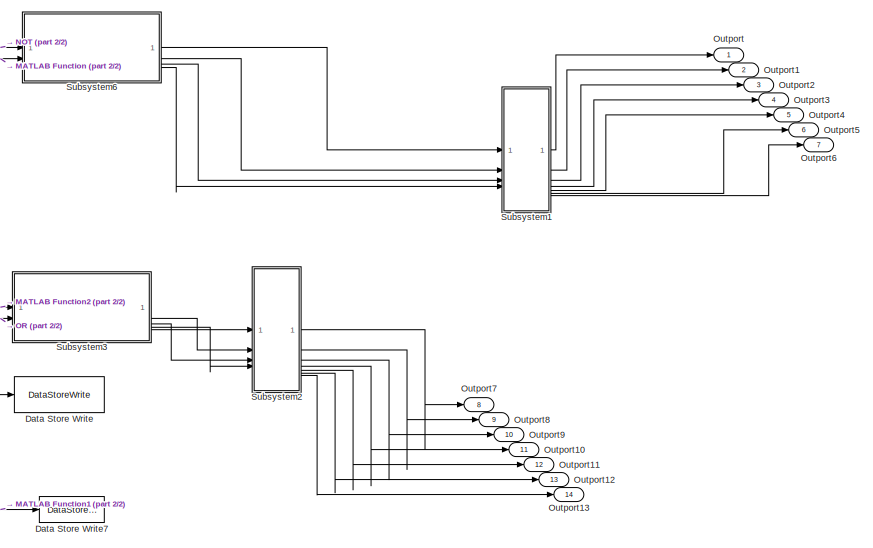
[diagram: root canvas - part 1/2, top right region]
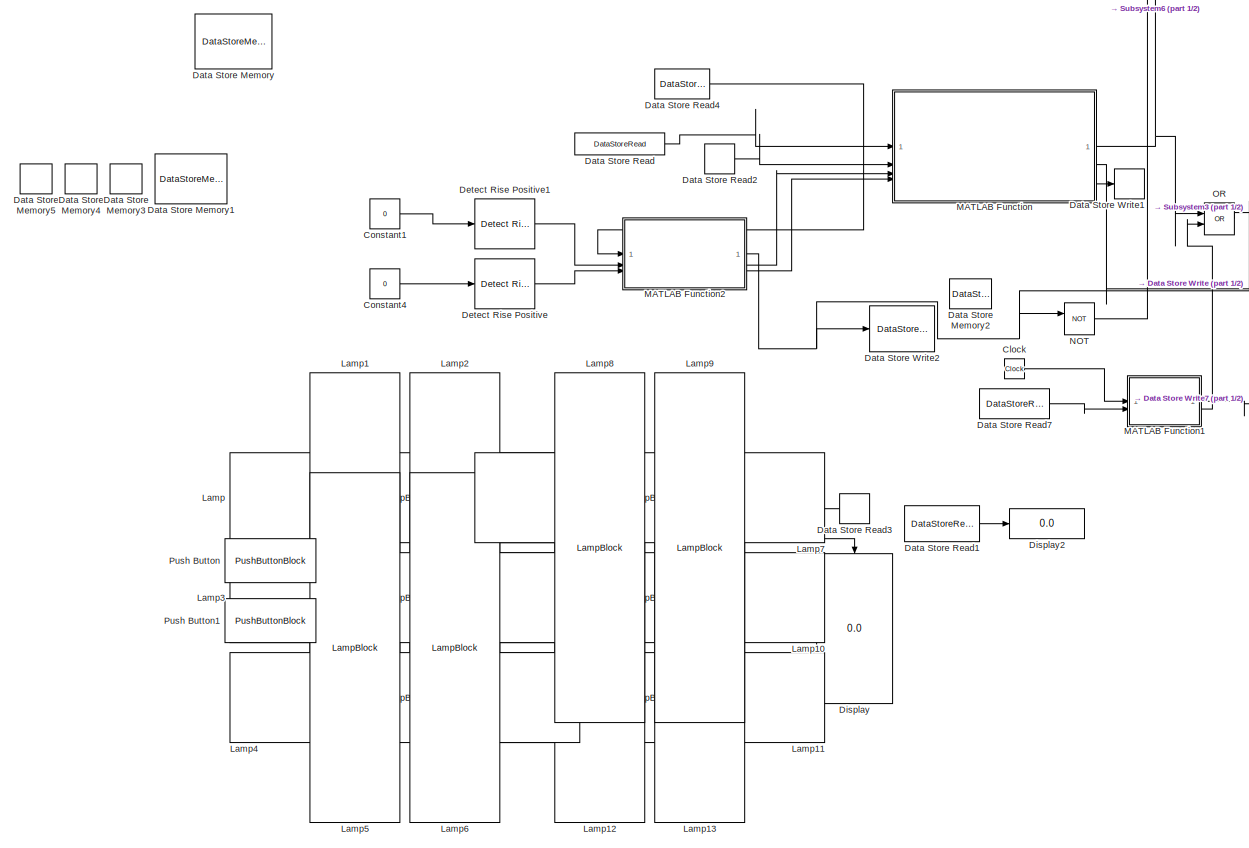
[diagram: root canvas - part 2/2, left side, full height]
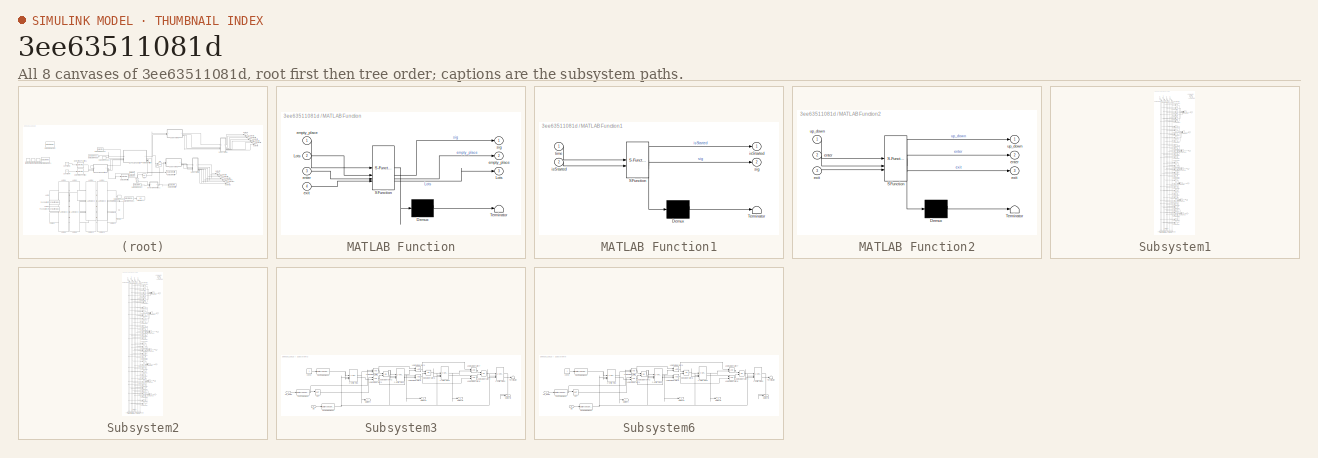
[diagram: thumbnail index - all 8 canvases of the model, root first then tree order]
MODEL slx_3ee63511081d
KIND model
CONFIG AbsTol = auto
CONFIG EnableMultiTasking = off
CONFIG FixedStep = auto
CONFIG MaxStep = auto
CONFIG MinStep = auto
CONFIG RelTol = 1e-3
CONFIG SampleTimeConstraint = Unconstrained
CONFIG SolverName = VariableStepAuto
CONFIG StartTime = 0.0
CONFIG StopTime = inf
BLOCK [Clock] Clock
BLOCK [Constant] Constant1
  Value = 0
BLOCK [Constant] Constant4
  Value = 0
BLOCK [DataStoreMemory] Data Store Memory
  DataStoreName = Empty_place
  InitialValue = 8
  OutDataTypeStr = double
  ShowAdditionalParam = off
  WriteAfterWriteMsg = warning
BLOCK [DataStoreMemory] Data Store Memory1
  DataStoreName = LOTS
  InitialValue = [0,0,0,0,0,0,0,0]
  ShowAdditionalParam = off
  WriteAfterWriteMsg = warning
BLOCK [DataStoreMemory] Data Store Memory2
  DataStoreName = up_down
  ShowAdditionalParam = off
  WriteAfterWriteMsg = warning
BLOCK [DataStoreMemory] Data Store Memory3
  DataStoreName = Enter
  ShowAdditionalParam = off
  WriteAfterWriteMsg = warning
BLOCK [DataStoreMemory] Data Store Memory4
  DataStoreName = Exit
  ShowAdditionalParam = off
  WriteAfterWriteMsg = warning
BLOCK [DataStoreMemory] Data Store Memory5
  DataStoreName = isStarted
  ShowAdditionalParam = off
  WriteAfterWriteMsg = warning
BLOCK [DataStoreRead] Data Store Read
  DataStoreName = Empty_place
  IndexOptions = Index vector (dialog)
  Indices = 1
  OutputSizes = 1
BLOCK [DataStoreRead] Data Store Read1
  DataStoreName = Empty_place
  IndexOptions = Index vector (dialog)
  Indices = 1
  OutputSizes = 1
BLOCK [DataStoreRead] Data Store Read2
  DataStoreName = LOTS
  IndexOptions = Index vector (dialog)
  Indices = 1
  OutputSizes = 1
BLOCK [DataStoreRead] Data Store Read3
  DataStoreName = LOTS
  IndexOptions = Index vector (dialog)
  Indices = 1
  NameLocation = top
  OutputSizes = 1
BLOCK [DataStoreRead] Data Store Read4
  DataStoreName = up_down
  IndexOptions = Index vector (dialog)
  Indices = 1
  OutputSizes = 1
BLOCK [DataStoreRead] Data Store Read7
  DataStoreName = isStarted
  IndexOptions = Index vector (dialog)
  Indices = 1
  OutputSizes = 1
BLOCK [DataStoreWrite] Data Store Write
  DataStoreName = Empty_place
  IndexOptions = Index vector (dialog)
  Indices = 1
  OutputSizes = 1
BLOCK [DataStoreWrite] Data Store Write1
  DataStoreName = LOTS
  IndexOptions = Index vector (dialog)
  Indices = 1
  OutputSizes = 1
BLOCK [DataStoreWrite] Data Store Write2
  DataStoreName = up_down
  IndexOptions = Index vector (dialog)
  Indices = 1
  OutputSizes = 1
BLOCK [DataStoreWrite] Data Store Write7
  DataStoreName = isStarted
  IndexOptions = Index vector (dialog)
  Indices = 1
  OutputSizes = 1
BLOCK [Reference] Detect Rise Positive  REF=simulink/Logic and Bit
Operations/Detect Rise
Positive
  SourceBlock = simulink/Logic and Bit\nOperations/Detect Rise\nPositive
  SourceType = Detect Rise Positive
BLOCK [Reference] Detect Rise Positive1  REF=simulink/Logic and Bit
Operations/Detect Rise
Positive
  SourceBlock = simulink/Logic and Bit\nOperations/Detect Rise\nPositive
  SourceType = Detect Rise Positive
BLOCK [Display] Display
  Decimation = 1
  NameLocation = left
BLOCK [Display] Display2
  Decimation = 1
BLOCK [LampBlock] Lamp
  Icon = Rectangle
  LabelPosition = Hide
BLOCK [LampBlock] Lamp1
  Icon = Rectangle
  LabelPosition = Hide
  NameLocation = left
BLOCK [LampBlock] Lamp10
  Icon = Rectangle
  LabelPosition = Hide
BLOCK [LampBlock] Lamp11
  Icon = Rectangle
  LabelPosition = Hide
BLOCK [LampBlock] Lamp12
  Icon = Rectangle
  LabelPosition = Hide
  NameLocation = left
BLOCK [LampBlock] Lamp13
  Icon = Rectangle
  LabelPosition = Hide
  NameLocation = left
BLOCK [LampBlock] Lamp2
  Icon = Rectangle
  LabelPosition = Hide
  NameLocation = left
BLOCK [LampBlock] Lamp3
  Icon = Rectangle
  LabelPosition = Hide
BLOCK [LampBlock] Lamp4
  Icon = Rectangle
  LabelPosition = Hide
BLOCK [LampBlock] Lamp5
  Icon = Rectangle
  LabelPosition = Hide
  NameLocation = left
BLOCK [LampBlock] Lamp6
  Icon = Rectangle
  LabelPosition = Hide
  NameLocation = left
BLOCK [LampBlock] Lamp7
  Icon = Rectangle
  LabelPosition = Hide
BLOCK [LampBlock] Lamp8
  Icon = Rectangle
  LabelPosition = Hide
  NameLocation = left
BLOCK [LampBlock] Lamp9
  Icon = Rectangle
  LabelPosition = Hide
  NameLocation = left
BLOCK [SubSystem] MATLAB Function
  ErrorFcn = Stateflow.Translate.translate
  PermitHierarchicalResolution = ExplicitOnly
  SFBlockType = MATLAB Function
  TreatAsAtomicUnit = on
BLOCK [Demux] MATLAB Function/ Demux 
  Outputs = 1
BLOCK [S-Function] MATLAB Function/ SFunction 
  EnableBusSupport = on
  FunctionName = sf_sfun
  PortCounts = [4 4]
  SFcnIsStateOwnerBlock = off
  SFunctionDeploymentMode = off
  Tag = Stateflow S-Function 2
BLOCK [Terminator] MATLAB Function/ Terminator 
BLOCK [Outport] MATLAB Function/Lots
  Port = 3
BLOCK [Inport] MATLAB Function/Lots 
  Port = 2
BLOCK [Outport] MATLAB Function/empty_place
  Port = 2
BLOCK [Inport] MATLAB Function/empty_place 
BLOCK [Inport] MATLAB Function/enter
  Port = 3
BLOCK [Inport] MATLAB Function/exit
  Port = 4
BLOCK [Outport] MATLAB Function/sig
BLOCK [SubSystem] MATLAB Function1
  ErrorFcn = Stateflow.Translate.translate
  PermitHierarchicalResolution = ExplicitOnly
  SFBlockType = MATLAB Function
  TreatAsAtomicUnit = on
BLOCK [Demux] MATLAB Function1/ Demux 
  Outputs = 1
BLOCK [S-Function] MATLAB Function1/ SFunction 
  EnableBusSupport = on
  FunctionName = sf_sfun
  PortCounts = [2 3]
  SFcnIsStateOwnerBlock = off
  SFunctionDeploymentMode = off
  Tag = Stateflow S-Function 1
BLOCK [Terminator] MATLAB Function1/ Terminator 
BLOCK [Outport] MATLAB Function1/isStarted
BLOCK [Inport] MATLAB Function1/isStarted 
  Port = 2
BLOCK [Outport] MATLAB Function1/sig
  Port = 2
BLOCK [Inport] MATLAB Function1/time
BLOCK [SubSystem] MATLAB Function2
  ErrorFcn = Stateflow.Translate.translate
  PermitHierarchicalResolution = ExplicitOnly
  SFBlockType = MATLAB Function
  TreatAsAtomicUnit = on
BLOCK [Demux] MATLAB Function2/ Demux 
  Outputs = 1
BLOCK [S-Function] MATLAB Function2/ SFunction 
  EnableBusSupport = on
  FunctionName = sf_sfun
  PortCounts = [3 4]
  SFcnIsStateOwnerBlock = off
  SFunctionDeploymentMode = off
  Tag = Stateflow S-Function 3
BLOCK [Terminator] MATLAB Function2/ Terminator 
BLOCK [Outport] MATLAB Function2/enter
  Port = 2
BLOCK [Inport] MATLAB Function2/enter 
  Port = 2
BLOCK [Outport] MATLAB Function2/exit
  Port = 3
BLOCK [Inport] MATLAB Function2/exit 
  Port = 3
BLOCK [Outport] MATLAB Function2/up_down
BLOCK [Inport] MATLAB Function2/up_down 
BLOCK [Logic] NOT
  AllPortsSameDT = off
  IconShape = distinctive
  Operator = NOT
  OutDataTypeStr = boolean
BLOCK [Logic] OR
  AllPortsSameDT = off
  IconShape = distinctive
  Operator = OR
  OutDataTypeStr = boolean
BLOCK [Outport] Outport
BLOCK [Outport] Outport1
  Port = 2
BLOCK [Outport] Outport10
  Port = 11
BLOCK [Outport] Outport11
  Port = 12
BLOCK [Outport] Outport12
  Port = 13
BLOCK [Outport] Outport13
  Port = 14
BLOCK [Outport] Outport2
  Port = 3
BLOCK [Outport] Outport3
  Port = 4
BLOCK [Outport] Outport4
  Port = 5
BLOCK [Outport] Outport5
  Port = 6
BLOCK [Outport] Outport6
  Port = 7
BLOCK [Outport] Outport7
  Port = 8
BLOCK [Outport] Outport8
  Port = 9
BLOCK [Outport] Outport9
  Port = 10
BLOCK [PushButtonBlock] Push Button
  ButtonText = Exit
  OffValue = 0.000000
BLOCK [PushButtonBlock] Push Button1
  ButtonText = Enter
  OffValue = 0.000000
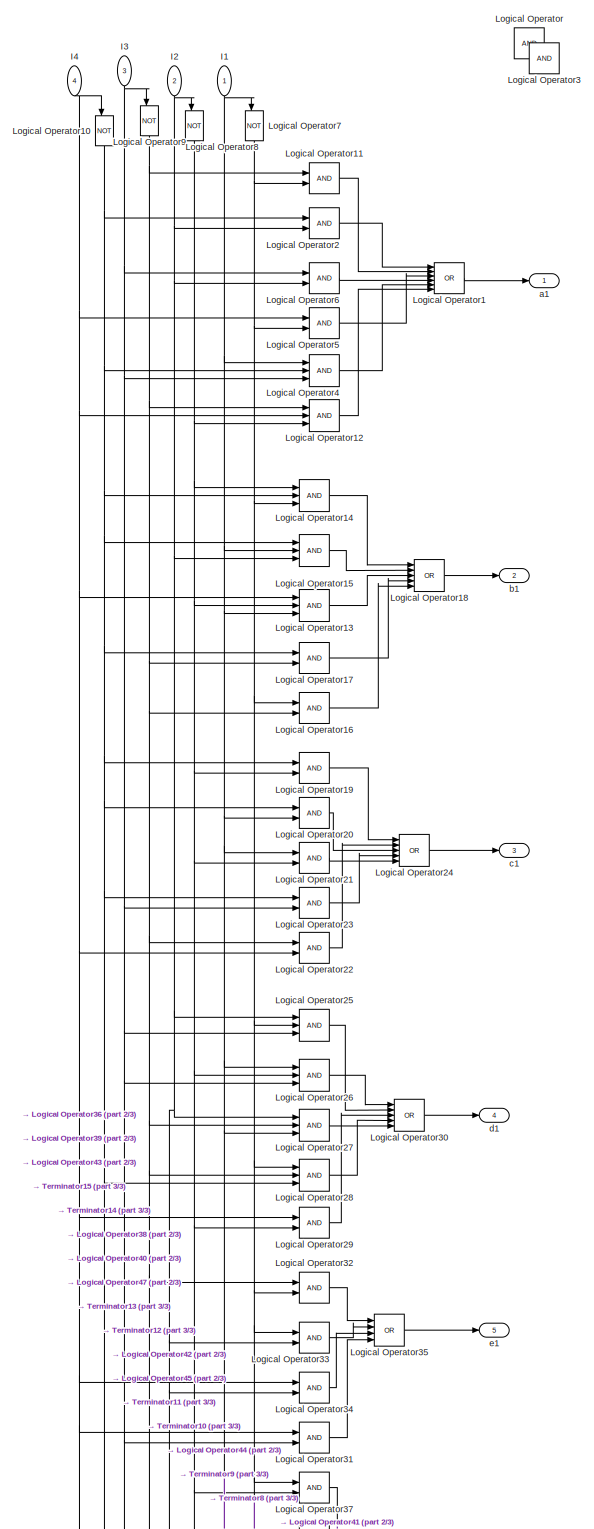
[diagram: Subsystem1 - part 1/3, most of the canvas]
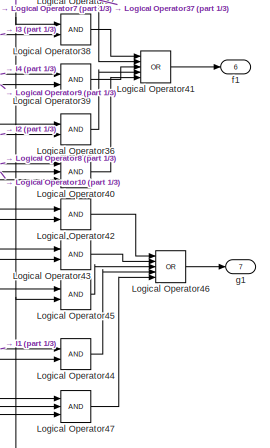
[diagram: Subsystem1 - part 2/3, bottom center region]
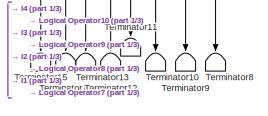
[diagram: Subsystem1 - part 3/3, bottom left region]
BLOCK [SubSystem] Subsystem1
  NameLocation = top
  TreatAsAtomicUnit = on
BLOCK [Inport] Subsystem1/I1
  NameLocation = left
BLOCK [Inport] Subsystem1/I2
  NameLocation = left
  Port = 2
BLOCK [Inport] Subsystem1/I3
  NameLocation = left
  Port = 3
BLOCK [Inport] Subsystem1/I4
  NameLocation = left
  Port = 4
BLOCK [Logic] Subsystem1/Logical Operator
  AllPortsSameDT = off
  OutDataTypeStr = boolean
BLOCK [Logic] Subsystem1/Logical Operator1
  AllPortsSameDT = off
  Inputs = 6
  Operator = OR
  OutDataTypeStr = boolean
BLOCK [Logic] Subsystem1/Logical Operator10
  AllPortsSameDT = off
  NameLocation = left
  Operator = NOT
  OutDataTypeStr = boolean
BLOCK [Logic] Subsystem1/Logical Operator11
  AllPortsSameDT = off
  OutDataTypeStr = boolean
BLOCK [Logic] Subsystem1/Logical Operator12
  AllPortsSameDT = off
  Inputs = 3
  OutDataTypeStr = boolean
BLOCK [Logic] Subsystem1/Logical Operator13
  AllPortsSameDT = off
  Inputs = 3
  OutDataTypeStr = boolean
BLOCK [Logic] Subsystem1/Logical Operator14
  AllPortsSameDT = off
  Inputs = 3
  OutDataTypeStr = boolean
BLOCK [Logic] Subsystem1/Logical Operator15
  AllPortsSameDT = off
  Inputs = 3
  OutDataTypeStr = boolean
BLOCK [Logic] Subsystem1/Logical Operator16
  AllPortsSameDT = off
  OutDataTypeStr = boolean
BLOCK [Logic] Subsystem1/Logical Operator17
  AllPortsSameDT = off
  OutDataTypeStr = boolean
BLOCK [Logic] Subsystem1/Logical Operator18
  AllPortsSameDT = off
  Inputs = 5
  Operator = OR
  OutDataTypeStr = boolean
BLOCK [Logic] Subsystem1/Logical Operator19
  AllPortsSameDT = off
  OutDataTypeStr = boolean
BLOCK [Logic] Subsystem1/Logical Operator2
  AllPortsSameDT = off
  OutDataTypeStr = boolean
BLOCK [Logic] Subsystem1/Logical Operator20
  AllPortsSameDT = off
  OutDataTypeStr = boolean
BLOCK [Logic] Subsystem1/Logical Operator21
  AllPortsSameDT = off
  OutDataTypeStr = boolean
BLOCK [Logic] Subsystem1/Logical Operator22
  AllPortsSameDT = off
  OutDataTypeStr = boolean
BLOCK [Logic] Subsystem1/Logical Operator23
  AllPortsSameDT = off
  OutDataTypeStr = boolean
BLOCK [Logic] Subsystem1/Logical Operator24
  AllPortsSameDT = off
  Inputs = 5
  Operator = OR
  OutDataTypeStr = boolean
BLOCK [Logic] Subsystem1/Logical Operator25
  AllPortsSameDT = off
  Inputs = 3
  OutDataTypeStr = boolean
BLOCK [Logic] Subsystem1/Logical Operator26
  AllPortsSameDT = off
  Inputs = 3
  OutDataTypeStr = boolean
BLOCK [Logic] Subsystem1/Logical Operator27
  AllPortsSameDT = off
  Inputs = 3
  OutDataTypeStr = boolean
BLOCK [Logic] Subsystem1/Logical Operator28
  AllPortsSameDT = off
  Inputs = 3
  OutDataTypeStr = boolean
BLOCK [Logic] Subsystem1/Logical Operator29
  AllPortsSameDT = off
  OutDataTypeStr = boolean
BLOCK [Logic] Subsystem1/Logical Operator3
  AllPortsSameDT = off
  OutDataTypeStr = boolean
BLOCK [Logic] Subsystem1/Logical Operator30
  AllPortsSameDT = off
  Inputs = 5
  Operator = OR
  OutDataTypeStr = boolean
BLOCK [Logic] Subsystem1/Logical Operator31
  AllPortsSameDT = off
  OutDataTypeStr = boolean
BLOCK [Logic] Subsystem1/Logical Operator32
  AllPortsSameDT = off
  OutDataTypeStr = boolean
BLOCK [Logic] Subsystem1/Logical Operator33
  AllPortsSameDT = off
  OutDataTypeStr = boolean
BLOCK [Logic] Subsystem1/Logical Operator34
  AllPortsSameDT = off
  OutDataTypeStr = boolean
BLOCK [Logic] Subsystem1/Logical Operator35
  AllPortsSameDT = off
  Inputs = 4
  Operator = OR
  OutDataTypeStr = boolean
BLOCK [Logic] Subsystem1/Logical Operator36
  AllPortsSameDT = off
  OutDataTypeStr = boolean
BLOCK [Logic] Subsystem1/Logical Operator37
  AllPortsSameDT = off
  OutDataTypeStr = boolean
BLOCK [Logic] Subsystem1/Logical Operator38
  AllPortsSameDT = off
  OutDataTypeStr = boolean
BLOCK [Logic] Subsystem1/Logical Operator39
  AllPortsSameDT = off
  OutDataTypeStr = boolean
BLOCK [Logic] Subsystem1/Logical Operator4
  AllPortsSameDT = off
  Inputs = 3
  OutDataTypeStr = boolean
BLOCK [Logic] Subsystem1/Logical Operator40
  AllPortsSameDT = off
  Inputs = 3
  OutDataTypeStr = boolean
BLOCK [Logic] Subsystem1/Logical Operator41
  AllPortsSameDT = off
  Inputs = 5
  Operator = OR
  OutDataTypeStr = boolean
BLOCK [Logic] Subsystem1/Logical Operator42
  AllPortsSameDT = off
  OutDataTypeStr = boolean
BLOCK [Logic] Subsystem1/Logical Operator43
  AllPortsSameDT = off
  OutDataTypeStr = boolean
BLOCK [Logic] Subsystem1/Logical Operator44
  AllPortsSameDT = off
  OutDataTypeStr = boolean
BLOCK [Logic] Subsystem1/Logical Operator45
  AllPortsSameDT = off
  OutDataTypeStr = boolean
BLOCK [Logic] Subsystem1/Logical Operator46
  AllPortsSameDT = off
  Inputs = 5
  Operator = OR
  OutDataTypeStr = boolean
BLOCK [Logic] Subsystem1/Logical Operator47
  AllPortsSameDT = off
  Inputs = 3
  OutDataTypeStr = boolean
BLOCK [Logic] Subsystem1/Logical Operator5
  AllPortsSameDT = off
  OutDataTypeStr = boolean
BLOCK [Logic] Subsystem1/Logical Operator6
  AllPortsSameDT = off
  OutDataTypeStr = boolean
BLOCK [Logic] Subsystem1/Logical Operator7
  AllPortsSameDT = off
  NameLocation = left
  Operator = NOT
  OutDataTypeStr = boolean
BLOCK [Logic] Subsystem1/Logical Operator8
  AllPortsSameDT = off
  NameLocation = left
  Operator = NOT
  OutDataTypeStr = boolean
BLOCK [Logic] Subsystem1/Logical Operator9
  AllPortsSameDT = off
  NameLocation = left
  Operator = NOT
  OutDataTypeStr = boolean
BLOCK [Terminator] Subsystem1/Terminator10
  NameLocation = left
BLOCK [Terminator] Subsystem1/Terminator11
  NameLocation = left
BLOCK [Terminator] Subsystem1/Terminator12
  NameLocation = left
BLOCK [Terminator] Subsystem1/Terminator13
  NameLocation = left
BLOCK [Terminator] Subsystem1/Terminator14
  NameLocation = left
BLOCK [Terminator] Subsystem1/Terminator15
  NameLocation = left
BLOCK [Terminator] Subsystem1/Terminator8
  NameLocation = left
BLOCK [Terminator] Subsystem1/Terminator9
  NameLocation = left
BLOCK [Outport] Subsystem1/a1
BLOCK [Outport] Subsystem1/b1
  Port = 2
BLOCK [Outport] Subsystem1/c1
  Port = 3
BLOCK [Outport] Subsystem1/d1
  Port = 4
BLOCK [Outport] Subsystem1/e1
  Port = 5
BLOCK [Outport] Subsystem1/f1
  Port = 6
BLOCK [Outport] Subsystem1/g1
  Port = 7
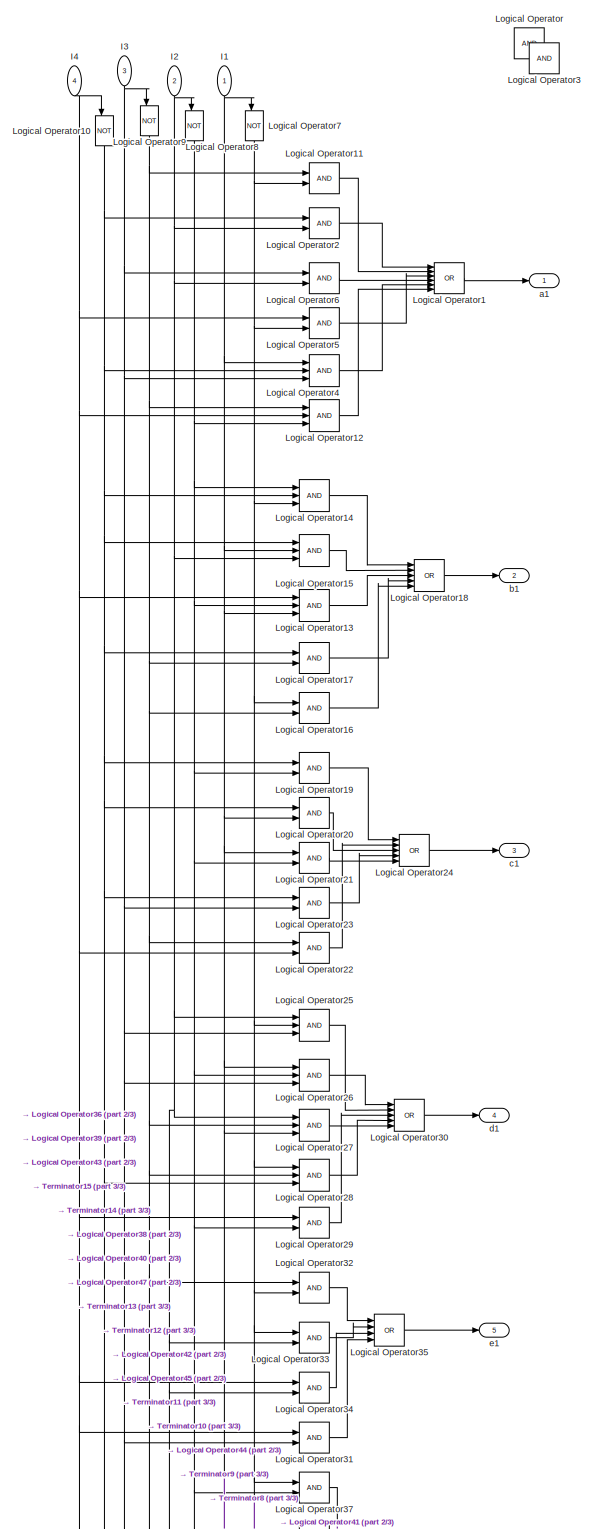
[diagram: Subsystem2 - part 1/3, most of the canvas]
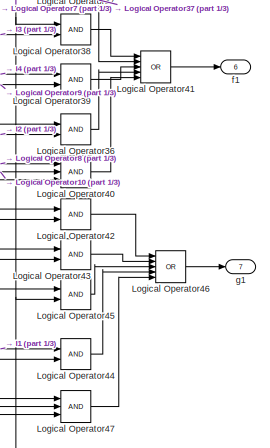
[diagram: Subsystem2 - part 2/3, bottom center region]
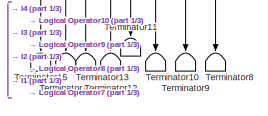
[diagram: Subsystem2 - part 3/3, bottom left region]
BLOCK [SubSystem] Subsystem2
  NameLocation = top
  TreatAsAtomicUnit = on
BLOCK [Inport] Subsystem2/I1
  NameLocation = left
BLOCK [Inport] Subsystem2/I2
  NameLocation = left
  Port = 2
BLOCK [Inport] Subsystem2/I3
  NameLocation = left
  Port = 3
BLOCK [Inport] Subsystem2/I4
  NameLocation = left
  Port = 4
BLOCK [Logic] Subsystem2/Logical Operator
  AllPortsSameDT = off
  OutDataTypeStr = boolean
BLOCK [Logic] Subsystem2/Logical Operator1
  AllPortsSameDT = off
  Inputs = 6
  Operator = OR
  OutDataTypeStr = boolean
BLOCK [Logic] Subsystem2/Logical Operator10
  AllPortsSameDT = off
  NameLocation = left
  Operator = NOT
  OutDataTypeStr = boolean
BLOCK [Logic] Subsystem2/Logical Operator11
  AllPortsSameDT = off
  OutDataTypeStr = boolean
BLOCK [Logic] Subsystem2/Logical Operator12
  AllPortsSameDT = off
  Inputs = 3
  OutDataTypeStr = boolean
BLOCK [Logic] Subsystem2/Logical Operator13
  AllPortsSameDT = off
  Inputs = 3
  OutDataTypeStr = boolean
BLOCK [Logic] Subsystem2/Logical Operator14
  AllPortsSameDT = off
  Inputs = 3
  OutDataTypeStr = boolean
BLOCK [Logic] Subsystem2/Logical Operator15
  AllPortsSameDT = off
  Inputs = 3
  OutDataTypeStr = boolean
BLOCK [Logic] Subsystem2/Logical Operator16
  AllPortsSameDT = off
  OutDataTypeStr = boolean
BLOCK [Logic] Subsystem2/Logical Operator17
  AllPortsSameDT = off
  OutDataTypeStr = boolean
BLOCK [Logic] Subsystem2/Logical Operator18
  AllPortsSameDT = off
  Inputs = 5
  Operator = OR
  OutDataTypeStr = boolean
BLOCK [Logic] Subsystem2/Logical Operator19
  AllPortsSameDT = off
  OutDataTypeStr = boolean
BLOCK [Logic] Subsystem2/Logical Operator2
  AllPortsSameDT = off
  OutDataTypeStr = boolean
BLOCK [Logic] Subsystem2/Logical Operator20
  AllPortsSameDT = off
  OutDataTypeStr = boolean
BLOCK [Logic] Subsystem2/Logical Operator21
  AllPortsSameDT = off
  OutDataTypeStr = boolean
BLOCK [Logic] Subsystem2/Logical Operator22
  AllPortsSameDT = off
  OutDataTypeStr = boolean
BLOCK [Logic] Subsystem2/Logical Operator23
  AllPortsSameDT = off
  OutDataTypeStr = boolean
BLOCK [Logic] Subsystem2/Logical Operator24
  AllPortsSameDT = off
  Inputs = 5
  Operator = OR
  OutDataTypeStr = boolean
BLOCK [Logic] Subsystem2/Logical Operator25
  AllPortsSameDT = off
  Inputs = 3
  OutDataTypeStr = boolean
BLOCK [Logic] Subsystem2/Logical Operator26
  AllPortsSameDT = off
  Inputs = 3
  OutDataTypeStr = boolean
BLOCK [Logic] Subsystem2/Logical Operator27
  AllPortsSameDT = off
  Inputs = 3
  OutDataTypeStr = boolean
BLOCK [Logic] Subsystem2/Logical Operator28
  AllPortsSameDT = off
  Inputs = 3
  OutDataTypeStr = boolean
BLOCK [Logic] Subsystem2/Logical Operator29
  AllPortsSameDT = off
  OutDataTypeStr = boolean
BLOCK [Logic] Subsystem2/Logical Operator3
  AllPortsSameDT = off
  OutDataTypeStr = boolean
BLOCK [Logic] Subsystem2/Logical Operator30
  AllPortsSameDT = off
  Inputs = 5
  Operator = OR
  OutDataTypeStr = boolean
BLOCK [Logic] Subsystem2/Logical Operator31
  AllPortsSameDT = off
  OutDataTypeStr = boolean
BLOCK [Logic] Subsystem2/Logical Operator32
  AllPortsSameDT = off
  OutDataTypeStr = boolean
BLOCK [Logic] Subsystem2/Logical Operator33
  AllPortsSameDT = off
  OutDataTypeStr = boolean
BLOCK [Logic] Subsystem2/Logical Operator34
  AllPortsSameDT = off
  OutDataTypeStr = boolean
BLOCK [Logic] Subsystem2/Logical Operator35
  AllPortsSameDT = off
  Inputs = 4
  Operator = OR
  OutDataTypeStr = boolean
BLOCK [Logic] Subsystem2/Logical Operator36
  AllPortsSameDT = off
  OutDataTypeStr = boolean
BLOCK [Logic] Subsystem2/Logical Operator37
  AllPortsSameDT = off
  OutDataTypeStr = boolean
BLOCK [Logic] Subsystem2/Logical Operator38
  AllPortsSameDT = off
  OutDataTypeStr = boolean
BLOCK [Logic] Subsystem2/Logical Operator39
  AllPortsSameDT = off
  OutDataTypeStr = boolean
BLOCK [Logic] Subsystem2/Logical Operator4
  AllPortsSameDT = off
  Inputs = 3
  OutDataTypeStr = boolean
BLOCK [Logic] Subsystem2/Logical Operator40
  AllPortsSameDT = off
  Inputs = 3
  OutDataTypeStr = boolean
BLOCK [Logic] Subsystem2/Logical Operator41
  AllPortsSameDT = off
  Inputs = 5
  Operator = OR
  OutDataTypeStr = boolean
BLOCK [Logic] Subsystem2/Logical Operator42
  AllPortsSameDT = off
  OutDataTypeStr = boolean
BLOCK [Logic] Subsystem2/Logical Operator43
  AllPortsSameDT = off
  OutDataTypeStr = boolean
BLOCK [Logic] Subsystem2/Logical Operator44
  AllPortsSameDT = off
  OutDataTypeStr = boolean
BLOCK [Logic] Subsystem2/Logical Operator45
  AllPortsSameDT = off
  OutDataTypeStr = boolean
BLOCK [Logic] Subsystem2/Logical Operator46
  AllPortsSameDT = off
  Inputs = 5
  Operator = OR
  OutDataTypeStr = boolean
BLOCK [Logic] Subsystem2/Logical Operator47
  AllPortsSameDT = off
  Inputs = 3
  OutDataTypeStr = boolean
BLOCK [Logic] Subsystem2/Logical Operator5
  AllPortsSameDT = off
  OutDataTypeStr = boolean
BLOCK [Logic] Subsystem2/Logical Operator6
  AllPortsSameDT = off
  OutDataTypeStr = boolean
BLOCK [Logic] Subsystem2/Logical Operator7
  AllPortsSameDT = off
  NameLocation = left
  Operator = NOT
  OutDataTypeStr = boolean
BLOCK [Logic] Subsystem2/Logical Operator8
  AllPortsSameDT = off
  NameLocation = left
  Operator = NOT
  OutDataTypeStr = boolean
BLOCK [Logic] Subsystem2/Logical Operator9
  AllPortsSameDT = off
  NameLocation = left
  Operator = NOT
  OutDataTypeStr = boolean
BLOCK [Terminator] Subsystem2/Terminator10
  NameLocation = left
BLOCK [Terminator] Subsystem2/Terminator11
  NameLocation = left
BLOCK [Terminator] Subsystem2/Terminator12
  NameLocation = left
BLOCK [Terminator] Subsystem2/Terminator13
  NameLocation = left
BLOCK [Terminator] Subsystem2/Terminator14
  NameLocation = left
BLOCK [Terminator] Subsystem2/Terminator15
  NameLocation = left
BLOCK [Terminator] Subsystem2/Terminator8
  NameLocation = left
BLOCK [Terminator] Subsystem2/Terminator9
  NameLocation = left
BLOCK [Outport] Subsystem2/a1
BLOCK [Outport] Subsystem2/b1
  Port = 2
BLOCK [Outport] Subsystem2/c1
  Port = 3
BLOCK [Outport] Subsystem2/d1
  Port = 4
BLOCK [Outport] Subsystem2/e1
  Port = 5
BLOCK [Outport] Subsystem2/f1
  Port = 6
BLOCK [Outport] Subsystem2/g1
  Port = 7
BLOCK [SubSystem] Subsystem3
BLOCK [DataTypeConversion] Subsystem3/Cast To Boolean
  OutDataTypeStr = boolean
  RndMeth = Floor
  SaturateOnIntegerOverflow = off
BLOCK [DataTypeConversion] Subsystem3/Cast To Boolean1
  OutDataTypeStr = boolean
  RndMeth = Floor
  SaturateOnIntegerOverflow = off
BLOCK [DataTypeConversion] Subsystem3/Cast To Boolean2
  OutDataTypeStr = boolean
  RndMeth = Floor
  SaturateOnIntegerOverflow = off
BLOCK [Reference] Subsystem3/J-K Flip-Flop  REF=simulink_extras/Flip Flops/J-K
Flip-Flop
  SourceBlock = simulink_extras/Flip Flops/J-K\nFlip-Flop
  SourceType = JKFlipFlop
BLOCK [Reference] Subsystem3/J-K Flip-Flop1  REF=simulink_extras/Flip Flops/J-K
Flip-Flop
  SourceBlock = simulink_extras/Flip Flops/J-K\nFlip-Flop
  SourceType = JKFlipFlop
BLOCK [Reference] Subsystem3/J-K Flip-Flop2  REF=simulink_extras/Flip Flops/J-K
Flip-Flop
  SourceBlock = simulink_extras/Flip Flops/J-K\nFlip-Flop
  SourceType = JKFlipFlop
BLOCK [Reference] Subsystem3/J-K Flip-Flop3  REF=simulink_extras/Flip Flops/J-K
Flip-Flop
  SourceBlock = simulink_extras/Flip Flops/J-K\nFlip-Flop
  SourceType = JKFlipFlop
BLOCK [Logic] Subsystem3/Logical Operator
  AllPortsSameDT = off
  OutDataTypeStr = boolean
BLOCK [Logic] Subsystem3/Logical Operator1
  AllPortsSameDT = off
  OutDataTypeStr = boolean
BLOCK [Logic] Subsystem3/Logical Operator2
  AllPortsSameDT = off
  Operator = OR
  OutDataTypeStr = boolean
BLOCK [Logic] Subsystem3/Logical Operator4
  AllPortsSameDT = off
  OutDataTypeStr = boolean
BLOCK [Logic] Subsystem3/Logical Operator5
  AllPortsSameDT = off
  OutDataTypeStr = boolean
BLOCK [Logic] Subsystem3/Logical Operator6
  AllPortsSameDT = off
  Operator = OR
  OutDataTypeStr = boolean
BLOCK [Logic] Subsystem3/Logical Operator7
  AllPortsSameDT = off
  OutDataTypeStr = boolean
BLOCK [Logic] Subsystem3/Logical Operator8
  AllPortsSameDT = off
  OutDataTypeStr = boolean
BLOCK [Logic] Subsystem3/Logical Operator9
  AllPortsSameDT = off
  Operator = OR
  OutDataTypeStr = boolean
BLOCK [Logic] Subsystem3/NOT
  AllPortsSameDT = off
  IconShape = distinctive
  Operator = NOT
  OutDataTypeStr = boolean
BLOCK [Outport] Subsystem3/Outport
BLOCK [Outport] Subsystem3/Outport1
  Port = 2
BLOCK [Outport] Subsystem3/Outport2
  Port = 3
BLOCK [Outport] Subsystem3/Outport3
  Port = 4
BLOCK [Terminator] Subsystem3/Terminator
BLOCK [Constant] Subsystem3/const
  SampleTime = -1
BLOCK [Inport] Subsystem3/sig
  Port = 2
BLOCK [Inport] Subsystem3/up_Down
BLOCK [SubSystem] Subsystem6
BLOCK [DataTypeConversion] Subsystem6/Cast To Boolean
  OutDataTypeStr = boolean
  RndMeth = Floor
  SaturateOnIntegerOverflow = off
BLOCK [DataTypeConversion] Subsystem6/Cast To Boolean1
  OutDataTypeStr = boolean
  RndMeth = Floor
  SaturateOnIntegerOverflow = off
BLOCK [DataTypeConversion] Subsystem6/Cast To Boolean2
  OutDataTypeStr = boolean
  RndMeth = Floor
  SaturateOnIntegerOverflow = off
BLOCK [Reference] Subsystem6/J-K Flip-Flop  REF=simulink_extras/Flip Flops/J-K
Flip-Flop
  SourceBlock = simulink_extras/Flip Flops/J-K\nFlip-Flop
  SourceType = JKFlipFlop
BLOCK [Reference] Subsystem6/J-K Flip-Flop1  REF=simulink_extras/Flip Flops/J-K
Flip-Flop
  SourceBlock = simulink_extras/Flip Flops/J-K\nFlip-Flop
  SourceType = JKFlipFlop
BLOCK [Reference] Subsystem6/J-K Flip-Flop2  REF=simulink_extras/Flip Flops/J-K
Flip-Flop
  SourceBlock = simulink_extras/Flip Flops/J-K\nFlip-Flop
  SourceType = JKFlipFlop
BLOCK [Reference] Subsystem6/J-K Flip-Flop3  REF=simulink_extras/Flip Flops/J-K
Flip-Flop
  SourceBlock = simulink_extras/Flip Flops/J-K\nFlip-Flop
  SourceType = JKFlipFlop
BLOCK [Logic] Subsystem6/Logical Operator
  AllPortsSameDT = off
  OutDataTypeStr = boolean
BLOCK [Logic] Subsystem6/Logical Operator1
  AllPortsSameDT = off
  OutDataTypeStr = boolean
BLOCK [Logic] Subsystem6/Logical Operator2
  AllPortsSameDT = off
  Operator = OR
  OutDataTypeStr = boolean
BLOCK [Logic] Subsystem6/Logical Operator4
  AllPortsSameDT = off
  OutDataTypeStr = boolean
BLOCK [Logic] Subsystem6/Logical Operator5
  AllPortsSameDT = off
  OutDataTypeStr = boolean
BLOCK [Logic] Subsystem6/Logical Operator6
  AllPortsSameDT = off
  Operator = OR
  OutDataTypeStr = boolean
BLOCK [Logic] Subsystem6/Logical Operator7
  AllPortsSameDT = off
  OutDataTypeStr = boolean
BLOCK [Logic] Subsystem6/Logical Operator8
  AllPortsSameDT = off
  OutDataTypeStr = boolean
BLOCK [Logic] Subsystem6/Logical Operator9
  AllPortsSameDT = off
  Operator = OR
  OutDataTypeStr = boolean
BLOCK [Logic] Subsystem6/NOT
  AllPortsSameDT = off
  IconShape = distinctive
  Operator = NOT
  OutDataTypeStr = boolean
BLOCK [Outport] Subsystem6/Outport
BLOCK [Outport] Subsystem6/Outport1
  Port = 2
BLOCK [Outport] Subsystem6/Outport2
  Port = 3
BLOCK [Outport] Subsystem6/Outport3
  Port = 4
BLOCK [Terminator] Subsystem6/Terminator
BLOCK [Constant] Subsystem6/const
  SampleTime = -1
BLOCK [Inport] Subsystem6/sig
  Port = 2
BLOCK [Inport] Subsystem6/up_Down
LINE Clock:1 -> MATLAB Function1:1
LINE Constant1:1 -> Detect Rise Positive1:1
LINE Constant4:1 -> Detect Rise Positive:1
LINE Data Store Read1:1 -> Display2:1
LINE Data Store Read2:1 -> MATLAB Function:2
LINE Data Store Read3:1 -> Display:1
LINE Data Store Read4:1 -> MATLAB Function2:1
LINE Data Store Read7:1 -> MATLAB Function1:2
LINE Data Store Read:1 -> MATLAB Function:1
LINE Detect Rise Positive1:1 -> MATLAB Function2:2
LINE Detect Rise Positive:1 -> MATLAB Function2:3
LINE MATLAB Function1:1 -> Data Store Write7:1
LINE MATLAB Function1:2 -> OR:2
NET MATLAB Function2:1 -> Data Store Write2:1, NOT:1, Subsystem3:1
LINE MATLAB Function2:2 -> MATLAB Function:3
LINE MATLAB Function2:3 -> MATLAB Function:4
NET MATLAB Function:1 -> OR:1, Subsystem6:2
LINE MATLAB Function:2 -> Data Store Write:1
LINE MATLAB Function:3 -> Data Store Write1:1
LINE NOT:1 -> Subsystem6:1
LINE OR:1 -> Subsystem3:2
NET Subsystem1/I1:1 -> Subsystem1/Logical Operator13:3, Subsystem1/Logical Operator15:2, Subsystem1/Logical Operator20:2, Subsystem1/Logical Operator21:1, Subsystem1/Logical Operator26:1, Subsystem1/Logical Operator27:3, Subsystem1/Logical Operator44:1, Subsystem1/Logical Operator4:1, Subsystem1/Logical Operator7:1, Subsystem1/Terminator9:1
NET Subsystem1/I2:1 -> Subsystem1/Logical Operator15:3, Subsystem1/Logical Operator25:1, Subsystem1/Logical Operator27:1, Subsystem1/Logical Operator2:2, Subsystem1/Logical Operator33:2, Subsystem1/Logical Operator34:2, Subsystem1/Logical Operator36:2, Subsystem1/Logical Operator42:2, Subsystem1/Logical Operator45:1, Subsystem1/Logical Operator6:2, Subsystem1/Logical Operator8:1, Subsystem1/Terminator11:1
NET Subsystem1/I3:1 -> Subsystem1/Logical Operator23:2, Subsystem1/Logical Operator25:3, Subsystem1/Logical Operator26:3, Subsystem1/Logical Operator31:2, Subsystem1/Logical Operator38:2, Subsystem1/Logical Operator40:3, Subsystem1/Logical Operator47:1, Subsystem1/Logical Operator4:3, Subsystem1/Logical Operator6:1, Subsystem1/Logical Operator9:1, Subsystem1/Terminator13:1
NET Subsystem1/I4:1 -> Subsystem1/Logical Operator10:1, Subsystem1/Logical Operator12:2, Subsystem1/Logical Operator13:1, Subsystem1/Logical Operator22:2, Subsystem1/Logical Operator29:1, Subsystem1/Logical Operator31:1, Subsystem1/Logical Operator34:1, Subsystem1/Logical Operator36:1, Subsystem1/Logical Operator39:1, Subsystem1/Logical Operator43:1, Subsystem1/Logical Operator44:2, Subsystem1/Logical Operator5:1, Subsystem1/Terminator15:1
NET Subsystem1/Logical Operator10:1 -> Subsystem1/Logical Operator14:2, Subsystem1/Logical Operator15:1, Subsystem1/Logical Operator17:1, Subsystem1/Logical Operator19:1, Subsystem1/Logical Operator20:1, Subsystem1/Logical Operator23:1, Subsystem1/Logical Operator28:3, Subsystem1/Logical Operator2:1, Subsystem1/Logical Operator40:2, Subsystem1/Logical Operator47:2, Subsystem1/Logical Operator4:2, Subsystem1/Terminator14:1
LINE Subsystem1/Logical Operator11:1 -> Subsystem1/Logical Operator1:2
LINE Subsystem1/Logical Operator12:1 -> Subsystem1/Logical Operator1:6
LINE Subsystem1/Logical Operator13:1 -> Subsystem1/Logical Operator18:3
LINE Subsystem1/Logical Operator14:1 -> Subsystem1/Logical Operator18:1
LINE Subsystem1/Logical Operator15:1 -> Subsystem1/Logical Operator18:2
LINE Subsystem1/Logical Operator16:1 -> Subsystem1/Logical Operator18:5
LINE Subsystem1/Logical Operator17:1 -> Subsystem1/Logical Operator18:4
LINE Subsystem1/Logical Operator18:1 -> Subsystem1/b1:1
LINE Subsystem1/Logical Operator19:1 -> Subsystem1/Logical Operator24:1
LINE Subsystem1/Logical Operator1:1 -> Subsystem1/a1:1
LINE Subsystem1/Logical Operator20:1 -> Subsystem1/Logical Operator24:3
LINE Subsystem1/Logical Operator21:1 -> Subsystem1/Logical Operator24:5
LINE Subsystem1/Logical Operator22:1 -> Subsystem1/Logical Operator24:2
LINE Subsystem1/Logical Operator23:1 -> Subsystem1/Logical Operator24:4
LINE Subsystem1/Logical Operator24:1 -> Subsystem1/c1:1
LINE Subsystem1/Logical Operator25:1 -> Subsystem1/Logical Operator30:2
LINE Subsystem1/Logical Operator26:1 -> Subsystem1/Logical Operator30:1
LINE Subsystem1/Logical Operator27:1 -> Subsystem1/Logical Operator30:5
LINE Subsystem1/Logical Operator28:1 -> Subsystem1/Logical Operator30:4
LINE Subsystem1/Logical Operator29:1 -> Subsystem1/Logical Operator30:3
LINE Subsystem1/Logical Operator2:1 -> Subsystem1/Logical Operator1:1
LINE Subsystem1/Logical Operator30:1 -> Subsystem1/d1:1
LINE Subsystem1/Logical Operator31:1 -> Subsystem1/Logical Operator35:4
LINE Subsystem1/Logical Operator32:1 -> Subsystem1/Logical Operator35:1
LINE Subsystem1/Logical Operator33:1 -> Subsystem1/Logical Operator35:2
LINE Subsystem1/Logical Operator34:1 -> Subsystem1/Logical Operator35:3
LINE Subsystem1/Logical Operator35:1 -> Subsystem1/e1:1
LINE Subsystem1/Logical Operator36:1 -> Subsystem1/Logical Operator41:4
LINE Subsystem1/Logical Operator37:1 -> Subsystem1/Logical Operator41:2
LINE Subsystem1/Logical Operator38:1 -> Subsystem1/Logical Operator41:1
LINE Subsystem1/Logical Operator39:1 -> Subsystem1/Logical Operator41:3
LINE Subsystem1/Logical Operator40:1 -> Subsystem1/Logical Operator41:5
LINE Subsystem1/Logical Operator41:1 -> Subsystem1/f1:1
LINE Subsystem1/Logical Operator42:1 -> Subsystem1/Logical Operator46:1
LINE Subsystem1/Logical Operator43:1 -> Subsystem1/Logical Operator46:2
LINE Subsystem1/Logical Operator44:1 -> Subsystem1/Logical Operator46:4
LINE Subsystem1/Logical Operator45:1 -> Subsystem1/Logical Operator46:3
LINE Subsystem1/Logical Operator46:1 -> Subsystem1/g1:1
LINE Subsystem1/Logical Operator47:1 -> Subsystem1/Logical Operator46:5
LINE Subsystem1/Logical Operator4:1 -> Subsystem1/Logical Operator1:5
LINE Subsystem1/Logical Operator5:1 -> Subsystem1/Logical Operator1:3
LINE Subsystem1/Logical Operator6:1 -> Subsystem1/Logical Operator1:4
NET Subsystem1/Logical Operator7:1 -> Subsystem1/Logical Operator11:2, Subsystem1/Logical Operator14:3, Subsystem1/Logical Operator16:1, Subsystem1/Logical Operator25:2, Subsystem1/Logical Operator28:1, Subsystem1/Logical Operator32:2, Subsystem1/Logical Operator33:1, Subsystem1/Logical Operator37:1, Subsystem1/Logical Operator38:1, Subsystem1/Logical Operator45:2, Subsystem1/Logical Operator5:2, Subsystem1/Terminator8:1
NET Subsystem1/Logical Operator8:1 -> Subsystem1/Logical Operator12:3, Subsystem1/Logical Operator13:2, Subsystem1/Logical Operator14:1, Subsystem1/Logical Operator19:2, Subsystem1/Logical Operator21:2, Subsystem1/Logical Operator26:2, Subsystem1/Logical Operator29:2, Subsystem1/Logical Operator37:2, Subsystem1/Logical Operator40:1, Subsystem1/Logical Operator47:3, Subsystem1/Terminator10:1
NET Subsystem1/Logical Operator9:1 -> Subsystem1/Logical Operator11:1, Subsystem1/Logical Operator12:1, Subsystem1/Logical Operator16:2, Subsystem1/Logical Operator17:2, Subsystem1/Logical Operator22:1, Subsystem1/Logical Operator27:2, Subsystem1/Logical Operator28:2, Subsystem1/Logical Operator32:1, Subsystem1/Logical Operator39:2, Subsystem1/Logical Operator42:1, Subsystem1/Logical Operator43:2, Subsystem1/Terminator12:1
LINE Subsystem1:1 -> Outport:1
LINE Subsystem1:2 -> Outport1:1
LINE Subsystem1:3 -> Outport2:1
LINE Subsystem1:4 -> Outport3:1
LINE Subsystem1:5 -> Outport4:1
LINE Subsystem1:6 -> Outport5:1
LINE Subsystem1:7 -> Outport6:1
NET Subsystem2/I1:1 -> Subsystem2/Logical Operator13:3, Subsystem2/Logical Operator15:2, Subsystem2/Logical Operator20:2, Subsystem2/Logical Operator21:1, Subsystem2/Logical Operator26:1, Subsystem2/Logical Operator27:3, Subsystem2/Logical Operator44:1, Subsystem2/Logical Operator4:1, Subsystem2/Logical Operator7:1, Subsystem2/Terminator9:1
NET Subsystem2/I2:1 -> Subsystem2/Logical Operator15:3, Subsystem2/Logical Operator25:1, Subsystem2/Logical Operator27:1, Subsystem2/Logical Operator2:2, Subsystem2/Logical Operator33:2, Subsystem2/Logical Operator34:2, Subsystem2/Logical Operator36:2, Subsystem2/Logical Operator42:2, Subsystem2/Logical Operator45:1, Subsystem2/Logical Operator6:2, Subsystem2/Logical Operator8:1, Subsystem2/Terminator11:1
NET Subsystem2/I3:1 -> Subsystem2/Logical Operator23:2, Subsystem2/Logical Operator25:3, Subsystem2/Logical Operator26:3, Subsystem2/Logical Operator31:2, Subsystem2/Logical Operator38:2, Subsystem2/Logical Operator40:3, Subsystem2/Logical Operator47:1, Subsystem2/Logical Operator4:3, Subsystem2/Logical Operator6:1, Subsystem2/Logical Operator9:1, Subsystem2/Terminator13:1
NET Subsystem2/I4:1 -> Subsystem2/Logical Operator10:1, Subsystem2/Logical Operator12:2, Subsystem2/Logical Operator13:1, Subsystem2/Logical Operator22:2, Subsystem2/Logical Operator29:1, Subsystem2/Logical Operator31:1, Subsystem2/Logical Operator34:1, Subsystem2/Logical Operator36:1, Subsystem2/Logical Operator39:1, Subsystem2/Logical Operator43:1, Subsystem2/Logical Operator44:2, Subsystem2/Logical Operator5:1, Subsystem2/Terminator15:1
NET Subsystem2/Logical Operator10:1 -> Subsystem2/Logical Operator14:2, Subsystem2/Logical Operator15:1, Subsystem2/Logical Operator17:1, Subsystem2/Logical Operator19:1, Subsystem2/Logical Operator20:1, Subsystem2/Logical Operator23:1, Subsystem2/Logical Operator28:3, Subsystem2/Logical Operator2:1, Subsystem2/Logical Operator40:2, Subsystem2/Logical Operator47:2, Subsystem2/Logical Operator4:2, Subsystem2/Terminator14:1
LINE Subsystem2/Logical Operator11:1 -> Subsystem2/Logical Operator1:2
LINE Subsystem2/Logical Operator12:1 -> Subsystem2/Logical Operator1:6
LINE Subsystem2/Logical Operator13:1 -> Subsystem2/Logical Operator18:3
LINE Subsystem2/Logical Operator14:1 -> Subsystem2/Logical Operator18:1
LINE Subsystem2/Logical Operator15:1 -> Subsystem2/Logical Operator18:2
LINE Subsystem2/Logical Operator16:1 -> Subsystem2/Logical Operator18:5
LINE Subsystem2/Logical Operator17:1 -> Subsystem2/Logical Operator18:4
LINE Subsystem2/Logical Operator18:1 -> Subsystem2/b1:1
LINE Subsystem2/Logical Operator19:1 -> Subsystem2/Logical Operator24:1
LINE Subsystem2/Logical Operator1:1 -> Subsystem2/a1:1
LINE Subsystem2/Logical Operator20:1 -> Subsystem2/Logical Operator24:3
LINE Subsystem2/Logical Operator21:1 -> Subsystem2/Logical Operator24:5
LINE Subsystem2/Logical Operator22:1 -> Subsystem2/Logical Operator24:2
LINE Subsystem2/Logical Operator23:1 -> Subsystem2/Logical Operator24:4
LINE Subsystem2/Logical Operator24:1 -> Subsystem2/c1:1
LINE Subsystem2/Logical Operator25:1 -> Subsystem2/Logical Operator30:2
LINE Subsystem2/Logical Operator26:1 -> Subsystem2/Logical Operator30:1
LINE Subsystem2/Logical Operator27:1 -> Subsystem2/Logical Operator30:5
LINE Subsystem2/Logical Operator28:1 -> Subsystem2/Logical Operator30:4
LINE Subsystem2/Logical Operator29:1 -> Subsystem2/Logical Operator30:3
LINE Subsystem2/Logical Operator2:1 -> Subsystem2/Logical Operator1:1
LINE Subsystem2/Logical Operator30:1 -> Subsystem2/d1:1
LINE Subsystem2/Logical Operator31:1 -> Subsystem2/Logical Operator35:4
LINE Subsystem2/Logical Operator32:1 -> Subsystem2/Logical Operator35:1
LINE Subsystem2/Logical Operator33:1 -> Subsystem2/Logical Operator35:2
LINE Subsystem2/Logical Operator34:1 -> Subsystem2/Logical Operator35:3
LINE Subsystem2/Logical Operator35:1 -> Subsystem2/e1:1
LINE Subsystem2/Logical Operator36:1 -> Subsystem2/Logical Operator41:4
LINE Subsystem2/Logical Operator37:1 -> Subsystem2/Logical Operator41:2
LINE Subsystem2/Logical Operator38:1 -> Subsystem2/Logical Operator41:1
LINE Subsystem2/Logical Operator39:1 -> Subsystem2/Logical Operator41:3
LINE Subsystem2/Logical Operator40:1 -> Subsystem2/Logical Operator41:5
LINE Subsystem2/Logical Operator41:1 -> Subsystem2/f1:1
LINE Subsystem2/Logical Operator42:1 -> Subsystem2/Logical Operator46:1
LINE Subsystem2/Logical Operator43:1 -> Subsystem2/Logical Operator46:2
LINE Subsystem2/Logical Operator44:1 -> Subsystem2/Logical Operator46:4
LINE Subsystem2/Logical Operator45:1 -> Subsystem2/Logical Operator46:3
LINE Subsystem2/Logical Operator46:1 -> Subsystem2/g1:1
LINE Subsystem2/Logical Operator47:1 -> Subsystem2/Logical Operator46:5
LINE Subsystem2/Logical Operator4:1 -> Subsystem2/Logical Operator1:5
LINE Subsystem2/Logical Operator5:1 -> Subsystem2/Logical Operator1:3
LINE Subsystem2/Logical Operator6:1 -> Subsystem2/Logical Operator1:4
NET Subsystem2/Logical Operator7:1 -> Subsystem2/Logical Operator11:2, Subsystem2/Logical Operator14:3, Subsystem2/Logical Operator16:1, Subsystem2/Logical Operator25:2, Subsystem2/Logical Operator28:1, Subsystem2/Logical Operator32:2, Subsystem2/Logical Operator33:1, Subsystem2/Logical Operator37:1, Subsystem2/Logical Operator38:1, Subsystem2/Logical Operator45:2, Subsystem2/Logical Operator5:2, Subsystem2/Terminator8:1
NET Subsystem2/Logical Operator8:1 -> Subsystem2/Logical Operator12:3, Subsystem2/Logical Operator13:2, Subsystem2/Logical Operator14:1, Subsystem2/Logical Operator19:2, Subsystem2/Logical Operator21:2, Subsystem2/Logical Operator26:2, Subsystem2/Logical Operator29:2, Subsystem2/Logical Operator37:2, Subsystem2/Logical Operator40:1, Subsystem2/Logical Operator47:3, Subsystem2/Terminator10:1
NET Subsystem2/Logical Operator9:1 -> Subsystem2/Logical Operator11:1, Subsystem2/Logical Operator12:1, Subsystem2/Logical Operator16:2, Subsystem2/Logical Operator17:2, Subsystem2/Logical Operator22:1, Subsystem2/Logical Operator27:2, Subsystem2/Logical Operator28:2, Subsystem2/Logical Operator32:1, Subsystem2/Logical Operator39:2, Subsystem2/Logical Operator42:1, Subsystem2/Logical Operator43:2, Subsystem2/Terminator12:1
LINE Subsystem2:1 -> Outport7:1
LINE Subsystem2:2 -> Outport8:1
LINE Subsystem2:3 -> Outport9:1
LINE Subsystem2:4 -> Outport10:1
LINE Subsystem2:5 -> Outport11:1
LINE Subsystem2:6 -> Outport12:1
LINE Subsystem2:7 -> Outport13:1
NET Subsystem3/Cast To Boolean1:1 -> Subsystem3/J-K Flip-Flop1:2, Subsystem3/J-K Flip-Flop2:2, Subsystem3/J-K Flip-Flop3:2, Subsystem3/J-K Flip-Flop:2
NET Subsystem3/Cast To Boolean2:1 -> Subsystem3/J-K Flip-Flop:1, Subsystem3/J-K Flip-Flop:3
NET Subsystem3/Cast To Boolean:1 -> Subsystem3/Logical Operator:1, Subsystem3/NOT:1
NET Subsystem3/J-K Flip-Flop1:1 -> Subsystem3/Logical Operator4:2, Subsystem3/Outport1:1
LINE Subsystem3/J-K Flip-Flop1:2 -> Subsystem3/Logical Operator5:2
NET Subsystem3/J-K Flip-Flop2:1 -> Subsystem3/Logical Operator7:2, Subsystem3/Outport2:1
LINE Subsystem3/J-K Flip-Flop2:2 -> Subsystem3/Logical Operator8:1
LINE Subsystem3/J-K Flip-Flop3:1 -> Subsystem3/Outport3:1
LINE Subsystem3/J-K Flip-Flop3:2 -> Subsystem3/Terminator:1
NET Subsystem3/J-K Flip-Flop:1 -> Subsystem3/Logical Operator:2, Subsystem3/Outport:1
LINE Subsystem3/J-K Flip-Flop:2 -> Subsystem3/Logical Operator1:2
NET Subsystem3/Logical Operator1:1 -> Subsystem3/Logical Operator2:2, Subsystem3/Logical Operator5:1
NET Subsystem3/Logical Operator2:1 -> Subsystem3/J-K Flip-Flop1:1, Subsystem3/J-K Flip-Flop1:3
NET Subsystem3/Logical Operator4:1 -> Subsystem3/Logical Operator6:1, Subsystem3/Logical Operator7:1
NET Subsystem3/Logical Operator5:1 -> Subsystem3/Logical Operator6:2, Subsystem3/Logical Operator8:2
NET Subsystem3/Logical Operator6:1 -> Subsystem3/J-K Flip-Flop2:1, Subsystem3/J-K Flip-Flop2:3
LINE Subsystem3/Logical Operator7:1 -> Subsystem3/Logical Operator9:1
LINE Subsystem3/Logical Operator8:1 -> Subsystem3/Logical Operator9:2
NET Subsystem3/Logical Operator9:1 -> Subsystem3/J-K Flip-Flop3:1, Subsystem3/J-K Flip-Flop3:3
NET Subsystem3/Logical Operator:1 -> Subsystem3/Logical Operator2:1, Subsystem3/Logical Operator4:1
LINE Subsystem3/NOT:1 -> Subsystem3/Logical Operator1:1
LINE Subsystem3/const:1 -> Subsystem3/Cast To Boolean2:1
LINE Subsystem3/sig:1 -> Subsystem3/Cast To Boolean1:1
LINE Subsystem3/up_Down:1 -> Subsystem3/Cast To Boolean:1
LINE Subsystem3:1 -> Subsystem2:1
LINE Subsystem3:2 -> Subsystem2:2
LINE Subsystem3:3 -> Subsystem2:3
LINE Subsystem3:4 -> Subsystem2:4
NET Subsystem6/Cast To Boolean1:1 -> Subsystem6/J-K Flip-Flop1:2, Subsystem6/J-K Flip-Flop2:2, Subsystem6/J-K Flip-Flop3:2, Subsystem6/J-K Flip-Flop:2
NET Subsystem6/Cast To Boolean2:1 -> Subsystem6/J-K Flip-Flop:1, Subsystem6/J-K Flip-Flop:3
NET Subsystem6/Cast To Boolean:1 -> Subsystem6/Logical Operator:1, Subsystem6/NOT:1
NET Subsystem6/J-K Flip-Flop1:1 -> Subsystem6/Logical Operator4:2, Subsystem6/Outport1:1
LINE Subsystem6/J-K Flip-Flop1:2 -> Subsystem6/Logical Operator5:2
NET Subsystem6/J-K Flip-Flop2:1 -> Subsystem6/Logical Operator7:2, Subsystem6/Outport2:1
LINE Subsystem6/J-K Flip-Flop2:2 -> Subsystem6/Logical Operator8:1
LINE Subsystem6/J-K Flip-Flop3:1 -> Subsystem6/Outport3:1
LINE Subsystem6/J-K Flip-Flop3:2 -> Subsystem6/Terminator:1
NET Subsystem6/J-K Flip-Flop:1 -> Subsystem6/Logical Operator:2, Subsystem6/Outport:1
LINE Subsystem6/J-K Flip-Flop:2 -> Subsystem6/Logical Operator1:2
NET Subsystem6/Logical Operator1:1 -> Subsystem6/Logical Operator2:2, Subsystem6/Logical Operator5:1
NET Subsystem6/Logical Operator2:1 -> Subsystem6/J-K Flip-Flop1:1, Subsystem6/J-K Flip-Flop1:3
NET Subsystem6/Logical Operator4:1 -> Subsystem6/Logical Operator6:1, Subsystem6/Logical Operator7:1
NET Subsystem6/Logical Operator5:1 -> Subsystem6/Logical Operator6:2, Subsystem6/Logical Operator8:2
NET Subsystem6/Logical Operator6:1 -> Subsystem6/J-K Flip-Flop2:1, Subsystem6/J-K Flip-Flop2:3
LINE Subsystem6/Logical Operator7:1 -> Subsystem6/Logical Operator9:1
LINE Subsystem6/Logical Operator8:1 -> Subsystem6/Logical Operator9:2
NET Subsystem6/Logical Operator9:1 -> Subsystem6/J-K Flip-Flop3:1, Subsystem6/J-K Flip-Flop3:3
NET Subsystem6/Logical Operator:1 -> Subsystem6/Logical Operator2:1, Subsystem6/Logical Operator4:1
LINE Subsystem6/NOT:1 -> Subsystem6/Logical Operator1:1
LINE Subsystem6/const:1 -> Subsystem6/Cast To Boolean2:1
LINE Subsystem6/sig:1 -> Subsystem6/Cast To Boolean1:1
LINE Subsystem6/up_Down:1 -> Subsystem6/Cast To Boolean:1
LINE Subsystem6:1 -> Subsystem1:1
LINE Subsystem6:2 -> Subsystem1:2
LINE Subsystem6:3 -> Subsystem1:3
LINE Subsystem6:4 -> Subsystem1:4
note: NET lines group one-source signal fan-out (src -> all destinations, sorted); 1:1 wires keep LINE
CHART MATLAB Function1 states=1 transitions=1
  STATE_LABEL 'eML_blk_kernel()'
  STATE_LABEL 'SCRIPT:\nfunction [isStarted,sig] = fcn(time, isStarted)\nsig=0;\nif(mod(time,1000)==0)\n    if(isStarted<8)\n        sig=1;\n        isStarted=isStarted+1;\n    else\n        sig=0;\n    end\nend\n\n'
CHART MATLAB Function states=1 transitions=1
  STATE_LABEL 'eML_blk_kernel()'
  STATE_LABEL 'SCRIPT:\nfunction [sig,empty_place,Lots] = fcn(empty_place,Lots,enter,exit)\nsig=0;\n\nif(enter>0 && empty_place>0)\n\n    for i=1:1:8\n        if(Lots(i)==0)\n            empty_place=empty_place-1;\n            Lots(i)=1;\n            break\n        end\n    end\n    sig=1;\nend\n\nif(exit>0 && empty_place<8)\n\n\n    \n    for i=1:length(Lots)\n        if(Lots(i)==1)\n            empty_place=empty_place+1;\n          ...<+71ch>'
CHART MATLAB Function2 states=1 transitions=1
  STATE_LABEL 'eML_blk_kernel()'
  STATE_LABEL 'SCRIPT:\nfunction [up_down,enter,exit] = fcn(up_down,enter,exit)\nif(enter>0)\n    up_down=0;\nend\nif(exit>0)\n    up_down=1;\nend\n\n'
CHART  states=0 transitions=0
CHART  states=0 transitions=0
CHART  states=0 transitions=0
